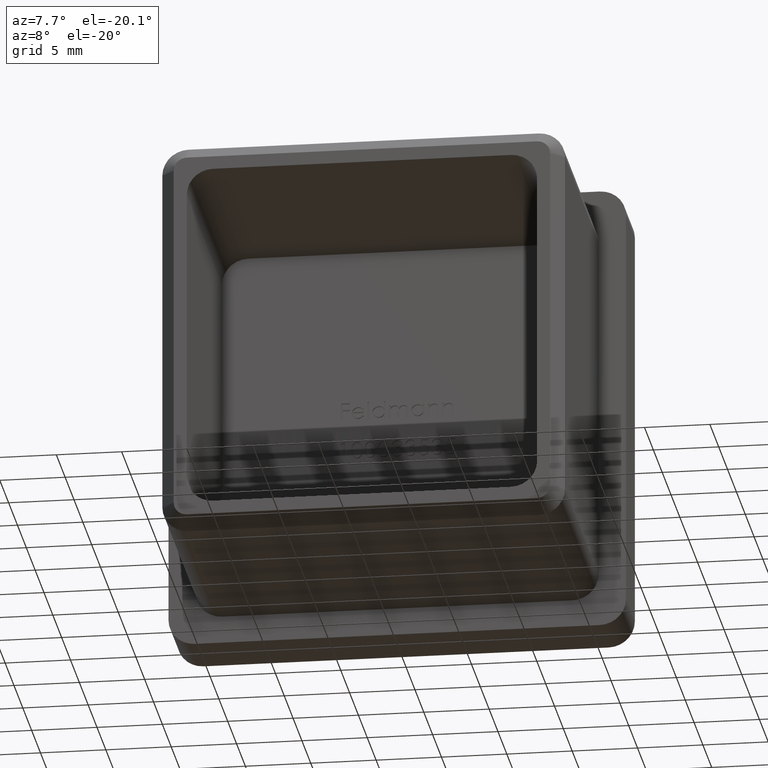
[diagram: clean part render]
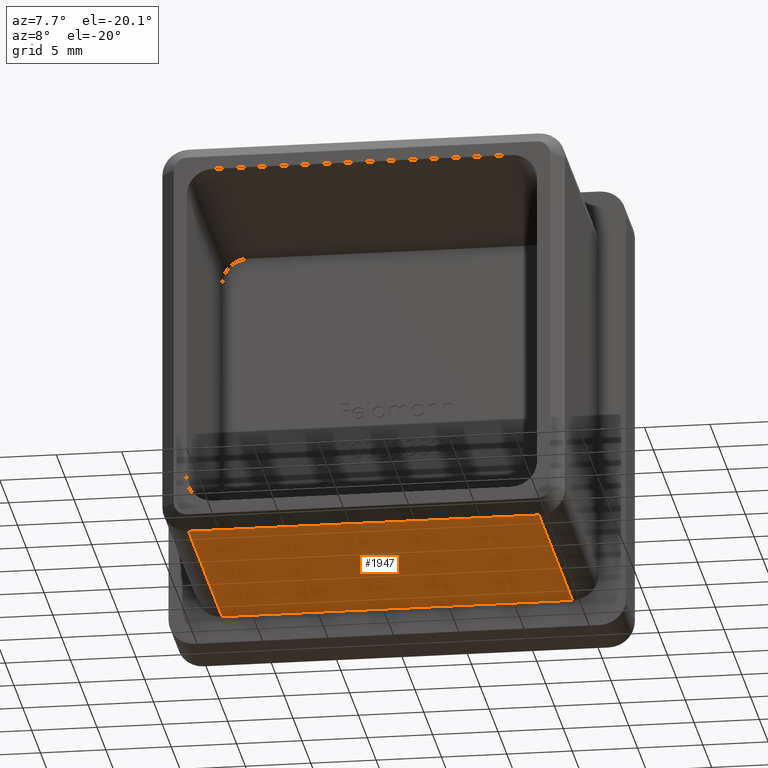
[diagram: same view with one face highlighted and labeled with its STEP entity id]
A machine part, auxiliary view. The second image highlights one B-rep face of the part: STEP entity #1947.
In plain terms, the highlighted planar face has unit normal (-0, 0, 1).
Its self-contained STEP definition (entity closure, byte-faithful):
#296 = VECTOR ( 'NONE', #15126, 1000.000000000000000 ) ;
#1191 = VERTEX_POINT ( 'NONE', #14251 ) ;
#1947 = ADVANCED_FACE ( 'NONE', ( #13523 ), #10743, .F. ) ;
#2090 = VERTEX_POINT ( 'NONE', #9944 ) ;
#3451 = DIRECTION ( 'NONE',  ( 0.0000000000000000000, 1.000000000000000000, -0.0000000000000000000 ) ) ;
#3459 = CARTESIAN_POINT ( 'NONE',  ( -13.40000000000000200, -19.00000000000000000, -15.40000000000000000 ) ) ;
#3529 = LINE ( 'NONE', #11463, #296 ) ;
#3534 = EDGE_CURVE ( 'NONE', #2090, #7547, #3529, .T. ) ;
#3924 = CARTESIAN_POINT ( 'NONE',  ( -15.40000000000000000, -0.0000000000000000000, -15.40000000000000000 ) ) ;
#4128 = VECTOR ( 'NONE', #3451, 1000.000000000000000 ) ;
#5299 = LINE ( 'NONE', #3924, #9145 ) ;
#5423 = LINE ( 'NONE', #3459, #6397 ) ;
#5805 = CARTESIAN_POINT ( 'NONE',  ( 13.39999999999999900, -19.00000000000000000, -15.40000000000000000 ) ) ;
#6068 = ORIENTED_EDGE ( 'NONE', *, *, #3534, .T. ) ;
#6397 = VECTOR ( 'NONE', #10848, 1000.000000000000000 ) ;
#6862 = EDGE_CURVE ( 'NONE', #14336, #2090, #5299, .T. ) ;
#7135 = CARTESIAN_POINT ( 'NONE',  ( -15.40000000000000000, -20.00000000000000000, -15.40000000000000000 ) ) ;
#7547 = VERTEX_POINT ( 'NONE', #5805 ) ;
#8163 = LINE ( 'NONE', #15777, #4128 ) ;
#8371 = DIRECTION ( 'NONE',  ( 1.000000000000000000, 0.0000000000000000000, 0.0000000000000000000 ) ) ;
#8906 = ORIENTED_EDGE ( 'NONE', *, *, #14837, .T. ) ;
#9145 = VECTOR ( 'NONE', #13633, 1000.000000000000000 ) ;
#9625 = EDGE_LOOP ( 'NONE', ( #6068, #8906, #12118, #14632 ) ) ;
#9944 = CARTESIAN_POINT ( 'NONE',  ( 13.39999999999999100, 0.0000000000000000000, -15.40000000000000000 ) ) ;
#10743 = PLANE ( 'NONE',  #14061 ) ;
#10848 = DIRECTION ( 'NONE',  ( -1.000000000000000000, 0.0000000000000000000, -0.0000000000000000000 ) ) ;
#11266 = EDGE_CURVE ( 'NONE', #1191, #14336, #8163, .T. ) ;
#11463 = CARTESIAN_POINT ( 'NONE',  ( 13.39999999999999900, -20.00000000000000000, -15.40000000000000000 ) ) ;
#12118 = ORIENTED_EDGE ( 'NONE', *, *, #11266, .T. ) ;
#13523 = FACE_OUTER_BOUND ( 'NONE', #9625, .T. ) ;
#13633 = DIRECTION ( 'NONE',  ( 1.000000000000000000, 0.0000000000000000000, 0.0000000000000000000 ) ) ;
#14061 = AXIS2_PLACEMENT_3D ( 'NONE', #7135, #15697, #8371 ) ;
#14139 = CARTESIAN_POINT ( 'NONE',  ( -13.40000000000000200, 0.0000000000000000000, -15.40000000000000000 ) ) ;
#14251 = CARTESIAN_POINT ( 'NONE',  ( -13.40000000000000000, -19.00000000000000000, -15.40000000000000000 ) ) ;
#14336 = VERTEX_POINT ( 'NONE', #14139 ) ;
#14632 = ORIENTED_EDGE ( 'NONE', *, *, #6862, .T. ) ;
#14837 = EDGE_CURVE ( 'NONE', #7547, #1191, #5423, .T. ) ;
#15126 = DIRECTION ( 'NONE',  ( -0.0000000000000000000, -1.000000000000000000, -0.0000000000000000000 ) ) ;
#15697 = DIRECTION ( 'NONE',  ( -0.0000000000000000000, 0.0000000000000000000, 1.000000000000000000 ) ) ;
#15777 = CARTESIAN_POINT ( 'NONE',  ( -13.40000000000000000, -20.00000000000000000, -15.40000000000000000 ) ) ;